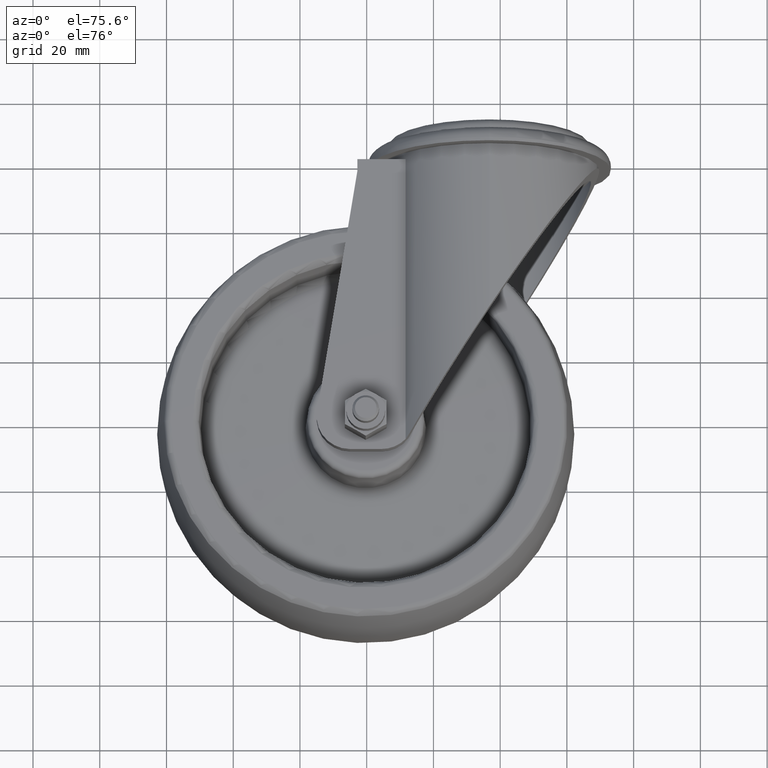
[diagram: clean part render]
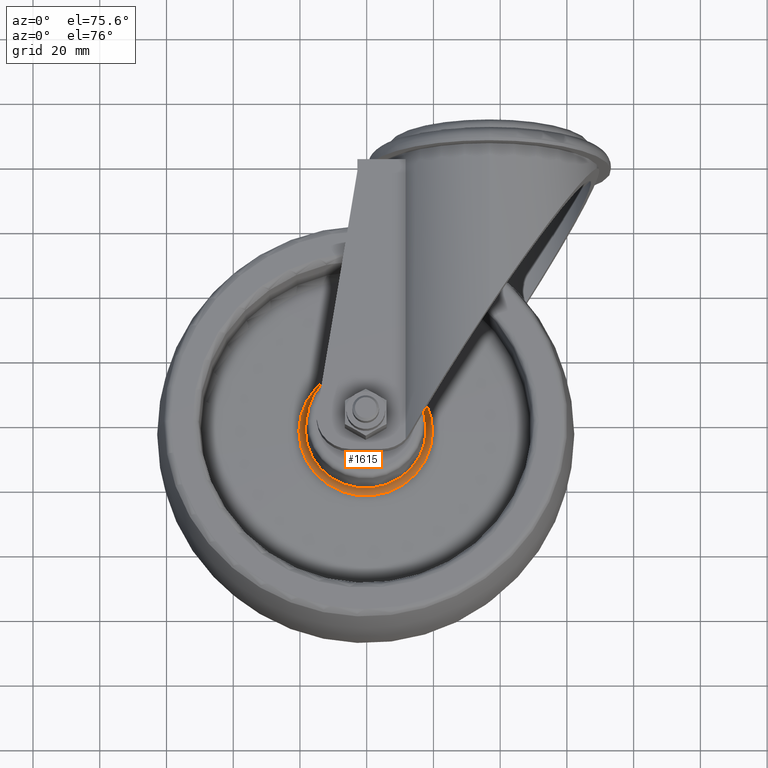
[diagram: same view with one face highlighted and labeled with its STEP entity id]
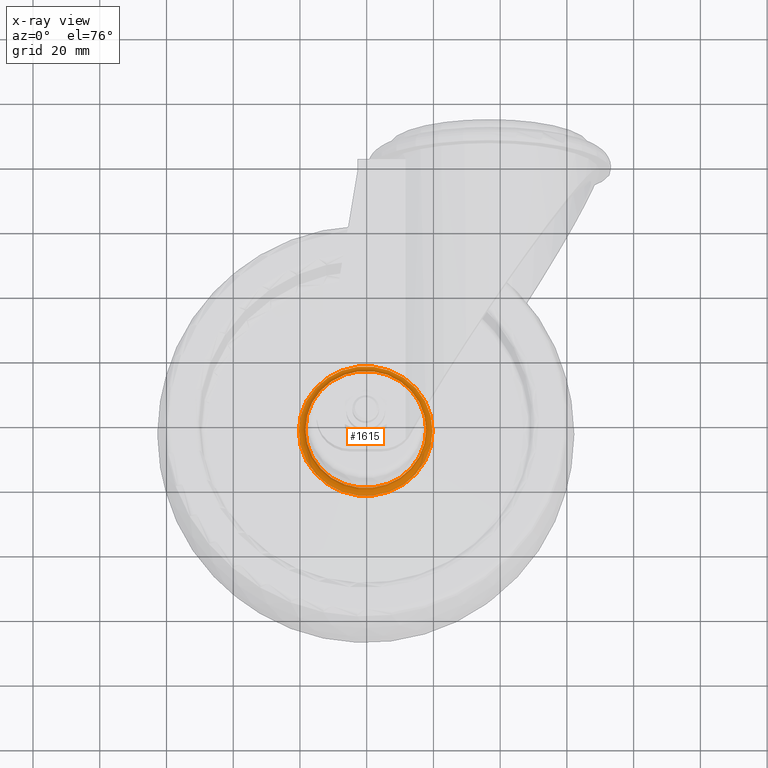
[diagram: x-ray of the same camera — body ghosted, the highlighted face saturated]
A machine part, auxiliary view. The second image highlights one B-rep face of the part: STEP entity #1615.
The next image is the same camera in x-ray: the body ghosted, the highlighted face saturated — about 0% of this face is hidden behind the body in this view.
In plain terms, the highlighted toroidal blend (fillet) surface has major radius 20.1029 mm and minor (blend) radius 2 mm.
Its self-contained STEP definition (entity closure, byte-faithful):
#140=TOROIDAL_SURFACE('',#1915,20.1028550662726,1.99999999999999);
#304=FACE_OUTER_BOUND('',#428,.T.);
#428=EDGE_LOOP('',(#1433,#1434,#1435,#1436,#1437,#1438));
#521=CIRCLE('',#1913,18.1055959967634);
#522=CIRCLE('',#1914,18.1055959967634);
#523=CIRCLE('',#1916,1.99999999999999);
#524=CIRCLE('',#1917,20.0330560728676);
#525=CIRCLE('',#1918,20.0330560728676);
#803=VERTEX_POINT('',#2994);
#804=VERTEX_POINT('',#2995);
#805=VERTEX_POINT('',#3000);
#806=VERTEX_POINT('',#3002);
#1014=EDGE_CURVE('',#803,#804,#521,.T.);
#1015=EDGE_CURVE('',#804,#803,#522,.T.);
#1017=EDGE_CURVE('',#804,#805,#523,.T.);
#1018=EDGE_CURVE('',#805,#806,#524,.T.);
#1019=EDGE_CURVE('',#806,#805,#525,.T.);
#1433=ORIENTED_EDGE('',*,*,#1014,.F.);
#1434=ORIENTED_EDGE('',*,*,#1015,.F.);
#1435=ORIENTED_EDGE('',*,*,#1017,.T.);
#1436=ORIENTED_EDGE('',*,*,#1018,.T.);
#1437=ORIENTED_EDGE('',*,*,#1019,.T.);
#1438=ORIENTED_EDGE('',*,*,#1017,.F.);
#1615=ADVANCED_FACE('',(#304),#140,.F.);
#1913=AXIS2_PLACEMENT_3D('',#2996,#2367,#2368);
#1914=AXIS2_PLACEMENT_3D('',#2997,#2369,#2370);
#1915=AXIS2_PLACEMENT_3D('',#2999,#2372,#2373);
#1916=AXIS2_PLACEMENT_3D('',#3001,#2374,#2375);
#1917=AXIS2_PLACEMENT_3D('',#3003,#2376,#2377);
#1918=AXIS2_PLACEMENT_3D('',#3004,#2378,#2379);
#2367=DIRECTION('center_axis',(0.,0.,1.));
#2368=DIRECTION('ref_axis',(1.,0.,0.));
#2369=DIRECTION('center_axis',(0.,0.,1.));
#2370=DIRECTION('ref_axis',(1.,0.,0.));
#2372=DIRECTION('center_axis',(0.,0.,1.));
#2373=DIRECTION('ref_axis',(1.,0.,0.));
#2374=DIRECTION('center_axis',(-1.22464679914735E-16,1.,0.));
#2375=DIRECTION('ref_axis',(-1.,-1.22464679914735E-16,0.));
#2376=DIRECTION('center_axis',(0.,0.,1.));
#2377=DIRECTION('ref_axis',(1.,0.,0.));
#2378=DIRECTION('center_axis',(0.,0.,1.));
#2379=DIRECTION('ref_axis',(1.,0.,0.));
#2994=CARTESIAN_POINT('',(18.1055959967634,0.,5.94454000821644));
#2995=CARTESIAN_POINT('',(-18.1055959967634,-2.21729601840914E-15,5.94454000821644));
#2996=CARTESIAN_POINT('Origin',(0.,0.,5.94454000821644));
#2997=CARTESIAN_POINT('Origin',(0.,0.,5.94454000821644));
#2999=CARTESIAN_POINT('Origin',(0.,0.,6.04921192070232));
#3000=CARTESIAN_POINT('',(-20.0330560728676,-2.45334179967768E-15,4.05043026666414));
#3001=CARTESIAN_POINT('Origin',(-20.1028550662726,-2.46188971106339E-15,
6.04921192070232));
#3002=CARTESIAN_POINT('',(20.0330560728676,0.,4.05043026666414));
#3003=CARTESIAN_POINT('Origin',(0.,0.,4.05043026666414));
#3004=CARTESIAN_POINT('Origin',(0.,0.,4.05043026666414));